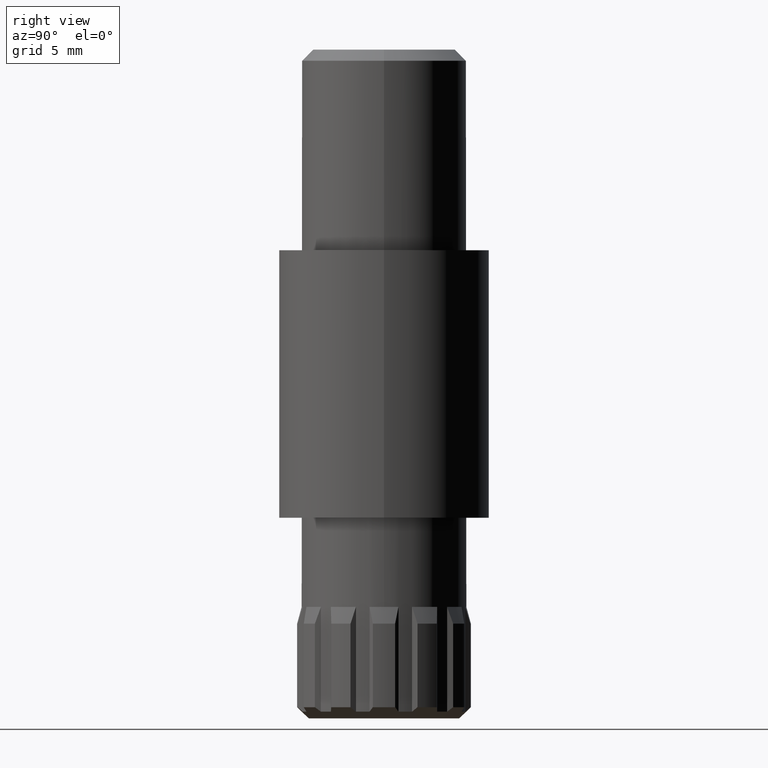
[diagram: clean part render]
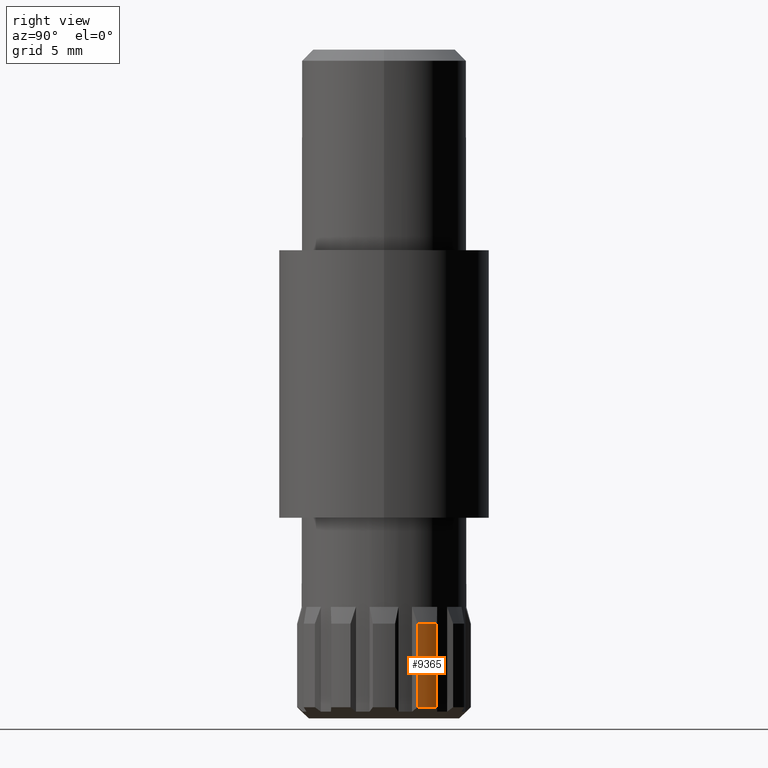
[diagram: same view with one face highlighted and labeled with its STEP entity id]
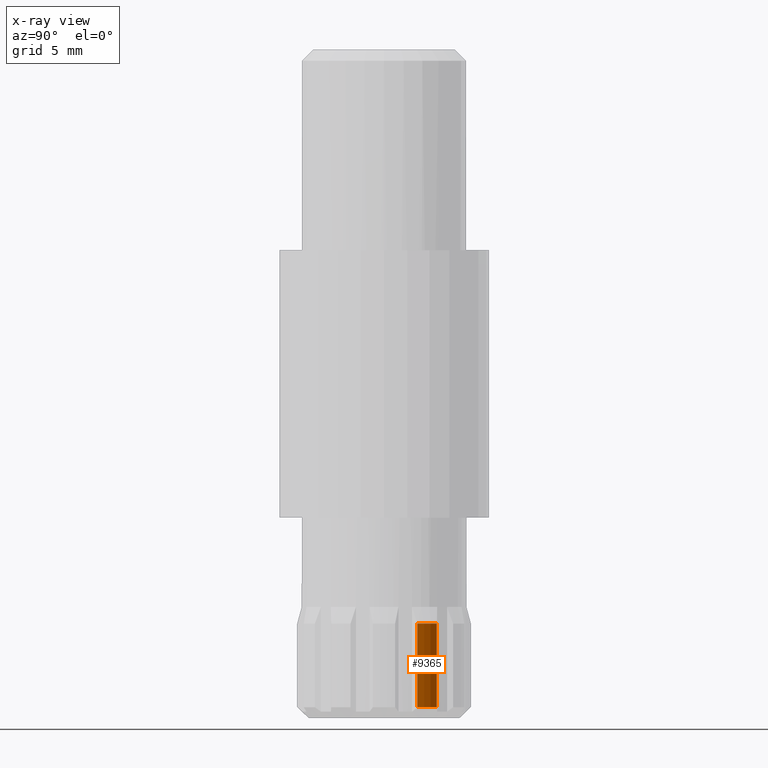
[diagram: x-ray of the same camera — body ghosted, the highlighted face saturated]
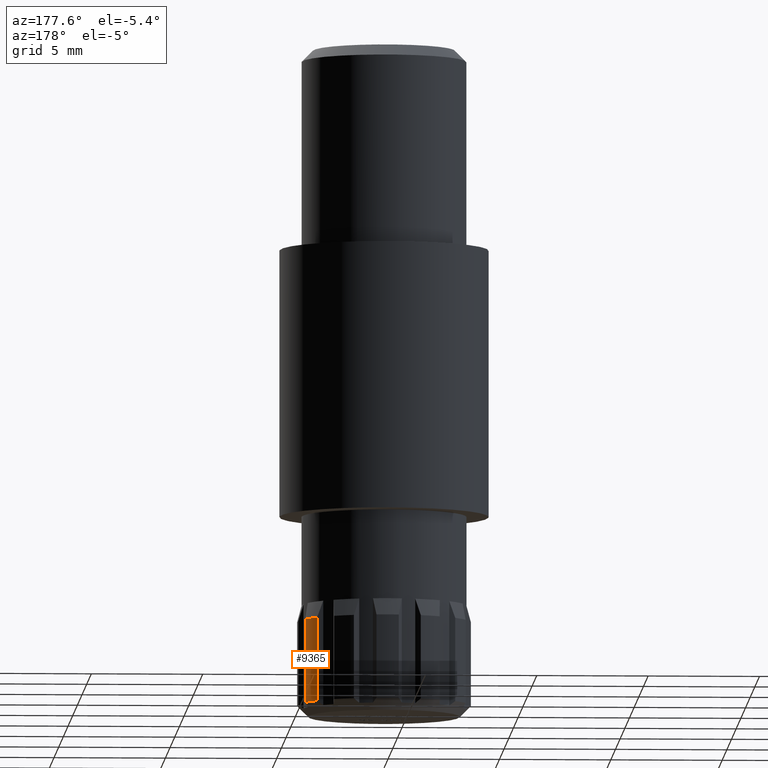
[diagram: same view with one face highlighted and labeled with its STEP entity id]
A machine part, right view. The second image highlights one B-rep face of the part: STEP entity #9365.
The next image is the same camera in x-ray: the body ghosted, the highlighted face saturated — about 0% of this face is hidden behind the body in this view.
A second angle (auxiliary view) of the same face is appended — the face is thin or edge-on in the first view.
In plain terms, the highlighted cylindrical surface (partial cylindrical patch) has radius 3.9 mm, axis along (0, 0, -1).
Its self-contained STEP definition (entity closure, byte-faithful):
#605 = ORIENTED_EDGE ( 'NONE', *, *, #1273, .F. ) ;
#660 = DIRECTION ( 'NONE',  ( -1.000000000000000000, 0.0000000000000000000, 0.0000000000000000000 ) ) ;
#769 = AXIS2_PLACEMENT_3D ( 'NONE', #5598, #13001, #6655 ) ;
#1273 = EDGE_CURVE ( 'NONE', #6591, #2697, #11046, .T. ) ;
#2532 = DIRECTION ( 'NONE',  ( -1.000000000000000000, 0.0000000000000000000, 0.0000000000000000000 ) ) ;
#2607 = AXIS2_PLACEMENT_3D ( 'NONE', #9994, #10792, #2532 ) ;
#2697 = VERTEX_POINT ( 'NONE', #13361 ) ;
#3019 = ORIENTED_EDGE ( 'NONE', *, *, #4593, .T. ) ;
#3707 = CARTESIAN_POINT ( 'NONE',  ( 3.599626844888848900, 1.500895258689143800, 5.000000000000000000 ) ) ;
#4593 = EDGE_CURVE ( 'NONE', #6591, #11134, #6681, .T. ) ;
#4748 = ORIENTED_EDGE ( 'NONE', *, *, #7172, .T. ) ;
#4763 = CYLINDRICAL_SURFACE ( 'NONE', #2607, 3.900000000000000400 ) ;
#4767 = DIRECTION ( 'NONE',  ( 0.0000000000000000000, 0.0000000000000000000, -1.000000000000000000 ) ) ;
#4955 = LINE ( 'NONE', #3707, #13071 ) ;
#5101 = FACE_OUTER_BOUND ( 'NONE', #13442, .T. ) ;
#5598 = CARTESIAN_POINT ( 'NONE',  ( 0.0000000000000000000, 0.0000000000000000000, 4.250000000000000000 ) ) ;
#6146 = CARTESIAN_POINT ( 'NONE',  ( 3.099626844888850200, 2.366920662473584800, 4.250000000000000000 ) ) ;
#6591 = VERTEX_POINT ( 'NONE', #6146 ) ;
#6655 = DIRECTION ( 'NONE',  ( -1.000000000000000000, 0.0000000000000000000, 0.0000000000000000000 ) ) ;
#6681 = CIRCLE ( 'NONE', #769, 3.899999999999999900 ) ;
#6737 = AXIS2_PLACEMENT_3D ( 'NONE', #13273, #6942, #660 ) ;
#6942 = DIRECTION ( 'NONE',  ( -0.0000000000000000000, -0.0000000000000000000, -1.000000000000000000 ) ) ;
#7172 = EDGE_CURVE ( 'NONE', #11134, #11556, #4955, .T. ) ;
#7235 = EDGE_CURVE ( 'NONE', #2697, #11556, #12744, .T. ) ;
#9365 = ADVANCED_FACE ( 'NONE', ( #5101 ), #4763, .T. ) ;
#9994 = CARTESIAN_POINT ( 'NONE',  ( 0.0000000000000000000, 0.0000000000000000000, 5.000000000000000000 ) ) ;
#10210 = DIRECTION ( 'NONE',  ( 0.0000000000000000000, 0.0000000000000000000, -1.000000000000000000 ) ) ;
#10714 = VECTOR ( 'NONE', #10210, 1000.000000000000000 ) ;
#10792 = DIRECTION ( 'NONE',  ( 0.0000000000000000000, 0.0000000000000000000, -1.000000000000000000 ) ) ;
#11046 = LINE ( 'NONE', #12246, #10714 ) ;
#11134 = VERTEX_POINT ( 'NONE', #12010 ) ;
#11556 = VERTEX_POINT ( 'NONE', #11955 ) ;
#11955 = CARTESIAN_POINT ( 'NONE',  ( 3.599626844888849300, 1.500895258689144000, 0.4999999999999998900 ) ) ;
#12010 = CARTESIAN_POINT ( 'NONE',  ( 3.599626844888849300, 1.500895258689144000, 4.250000000000000000 ) ) ;
#12246 = CARTESIAN_POINT ( 'NONE',  ( 3.099626844888850700, 2.366920662473583900, 5.000000000000000000 ) ) ;
#12744 = CIRCLE ( 'NONE', #6737, 3.899999999999999900 ) ;
#12976 = ORIENTED_EDGE ( 'NONE', *, *, #7235, .F. ) ;
#13001 = DIRECTION ( 'NONE',  ( -0.0000000000000000000, -0.0000000000000000000, -1.000000000000000000 ) ) ;
#13071 = VECTOR ( 'NONE', #4767, 1000.000000000000000 ) ;
#13273 = CARTESIAN_POINT ( 'NONE',  ( 0.0000000000000000000, 0.0000000000000000000, 0.4999999999999998900 ) ) ;
#13361 = CARTESIAN_POINT ( 'NONE',  ( 3.099626844888850200, 2.366920662473584800, 0.4999999999999998900 ) ) ;
#13442 = EDGE_LOOP ( 'NONE', ( #3019, #4748, #12976, #605 ) ) ;